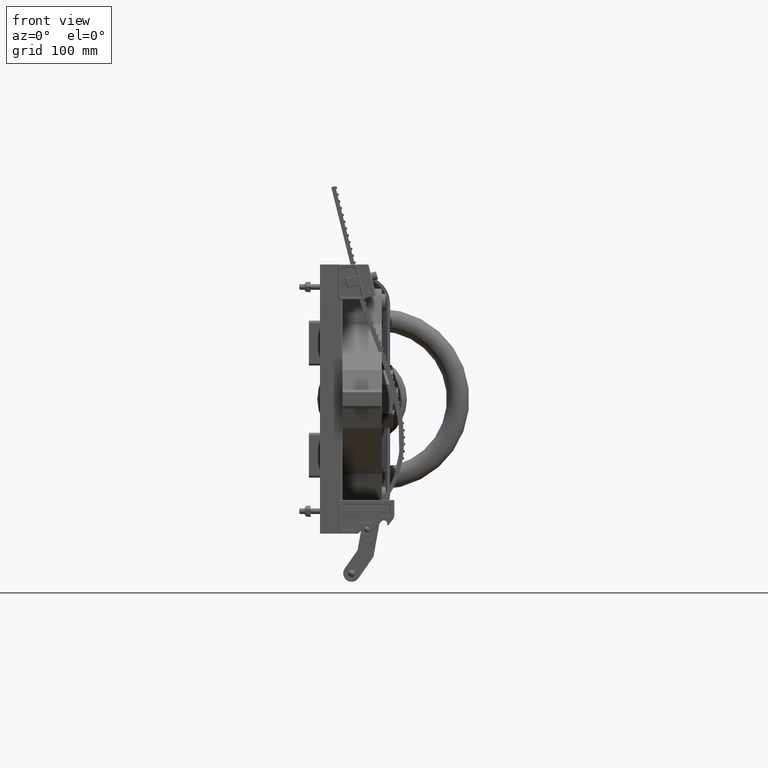
[diagram: clean part render]
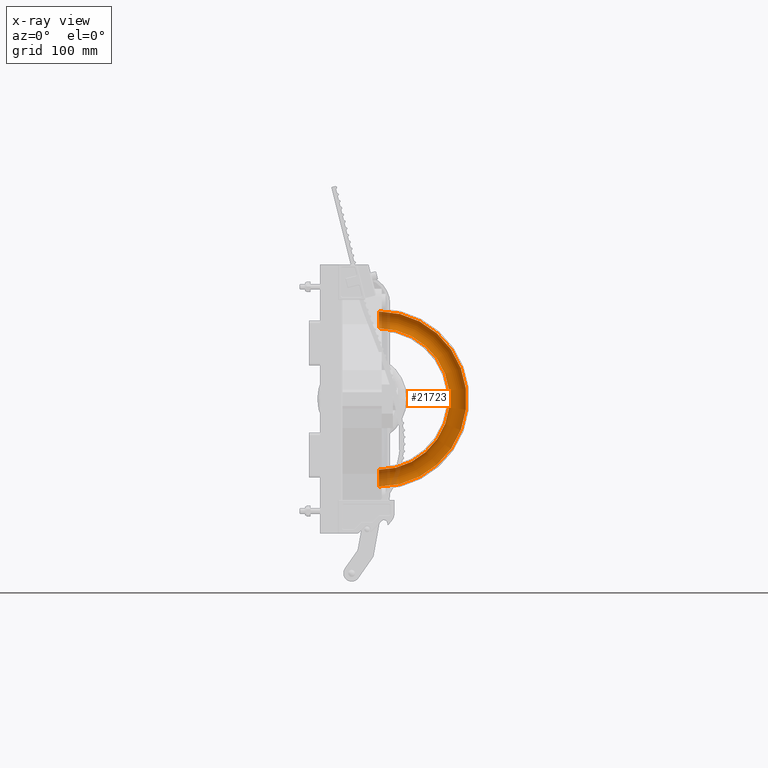
[diagram: x-ray — body ghosted, one internal face saturated and labeled with its STEP entity id]
A machine part, front view, then the same camera in x-ray: the body is ghosted and one INTERNAL B-rep face — a face not visible from any outside direction — is saturated and labeled: STEP entity #21723.
In plain terms, the highlighted toroidal blend (fillet) surface has major radius 89.6938 mm and minor (blend) radius 9.525 mm.
Its self-contained STEP definition (entity closure, byte-faithful):
#2308 = AXIS2_PLACEMENT_3D ( 'NONE', #36955, #36959, #36968 ) ;
#11036 = CARTESIAN_POINT ( 'NONE',  ( 3.156249999999999600, -11.98856226669558500, -0.7499999999999998900 ) ) ;
#11043 = CARTESIAN_POINT ( 'NONE',  ( -3.906250000000002200, -11.98856226669558500, -0.7500000000000003300 ) ) ;
#11053 = CARTESIAN_POINT ( 'NONE',  ( 3.906250000000000000, -11.98856226669558500, -0.7499999999999998900 ) ) ;
#12630 = TOROIDAL_SURFACE ( 'NONE', #2308, 3.531250000000000900, 0.3750000000000001700 ) ;
#12633 = FACE_OUTER_BOUND ( 'NONE', #30791, .T. ) ;
#14122 = VERTEX_POINT ( 'NONE', #11036 ) ;
#14137 = VERTEX_POINT ( 'NONE', #11043 ) ;
#14161 = VERTEX_POINT ( 'NONE', #11053 ) ;
#20472 = CIRCLE ( 'NONE', #43083, 3.906250000000000900 ) ;
#20516 = CIRCLE ( 'NONE', #43087, 3.156250000000000400 ) ;
#20662 = CIRCLE ( 'NONE', #43106, 0.3750000000000002200 ) ;
#20666 = CIRCLE ( 'NONE', #43107, 0.3750000000000002200 ) ;
#21723 = ADVANCED_FACE ( 'NONE', ( #12633 ), #12630, .F. ) ;
#27720 = EDGE_CURVE ( 'NONE', #14161, #14137, #20472, .T. ) ;
#27729 = EDGE_CURVE ( 'NONE', #14122, #37492, #20516, .T. ) ;
#27766 = EDGE_CURVE ( 'NONE', #37492, #14137, #20662, .T. ) ;
#27767 = EDGE_CURVE ( 'NONE', #14122, #14161, #20666, .T. ) ;
#28498 = ORIENTED_EDGE ( 'NONE', *, *, #27720, .F. ) ;
#28499 = ORIENTED_EDGE ( 'NONE', *, *, #27767, .F. ) ;
#28500 = ORIENTED_EDGE ( 'NONE', *, *, #27729, .T. ) ;
#28501 = ORIENTED_EDGE ( 'NONE', *, *, #27766, .T. ) ;
#30791 = EDGE_LOOP ( 'NONE', ( #28498, #28499, #28500, #28501 ) ) ;
#31188 = CARTESIAN_POINT ( 'NONE',  ( -1.092739197465705300E-015, -11.98856226669558500, -0.7499999999999998900 ) ) ;
#31207 = DIRECTION ( 'NONE',  ( 0.0000000000000000000, 1.000000000000000000, 0.0000000000000000000 ) ) ;
#31208 = DIRECTION ( 'NONE',  ( 0.0000000000000000000, 0.0000000000000000000, 1.000000000000000000 ) ) ;
#31223 = CARTESIAN_POINT ( 'NONE',  ( -1.092739197465705300E-015, -11.98856226669558500, -0.7499999999999998900 ) ) ;
#31229 = DIRECTION ( 'NONE',  ( 0.0000000000000000000, 1.000000000000000000, 0.0000000000000000000 ) ) ;
#31230 = DIRECTION ( 'NONE',  ( 0.0000000000000000000, 0.0000000000000000000, 1.000000000000000000 ) ) ;
#31315 = CARTESIAN_POINT ( 'NONE',  ( -3.531250000000001800, -11.98856226669558500, -0.7500000000000003300 ) ) ;
#31319 = CARTESIAN_POINT ( 'NONE',  ( 3.531249999999999600, -11.98856226669558500, -0.7499999999999998900 ) ) ;
#31323 = DIRECTION ( 'NONE',  ( -1.224646799147353200E-016, 0.0000000000000000000, 1.000000000000000000 ) ) ;
#31324 = DIRECTION ( 'NONE',  ( 1.000000000000000000, 0.0000000000000000000, 0.0000000000000000000 ) ) ;
#31325 = DIRECTION ( 'NONE',  ( 0.0000000000000000000, 0.0000000000000000000, -1.000000000000000000 ) ) ;
#31326 = DIRECTION ( 'NONE',  ( -1.000000000000000000, 0.0000000000000000000, 0.0000000000000000000 ) ) ;
#34682 = CARTESIAN_POINT ( 'NONE',  ( -3.156250000000001800, -11.98856226669558500, -0.7500000000000003300 ) ) ;
#36955 = CARTESIAN_POINT ( 'NONE',  ( -1.092739197465705300E-015, -11.98856226669558500, -0.7499999999999998900 ) ) ;
#36959 = DIRECTION ( 'NONE',  ( 0.0000000000000000000, 1.000000000000000000, 0.0000000000000000000 ) ) ;
#36968 = DIRECTION ( 'NONE',  ( 0.0000000000000000000, 0.0000000000000000000, 1.000000000000000000 ) ) ;
#37492 = VERTEX_POINT ( 'NONE', #34682 ) ;
#43083 = AXIS2_PLACEMENT_3D ( 'NONE', #31188, #31207, #31208 ) ;
#43087 = AXIS2_PLACEMENT_3D ( 'NONE', #31223, #31229, #31230 ) ;
#43106 = AXIS2_PLACEMENT_3D ( 'NONE', #31315, #31323, #31324 ) ;
#43107 = AXIS2_PLACEMENT_3D ( 'NONE', #31319, #31325, #31326 ) ;